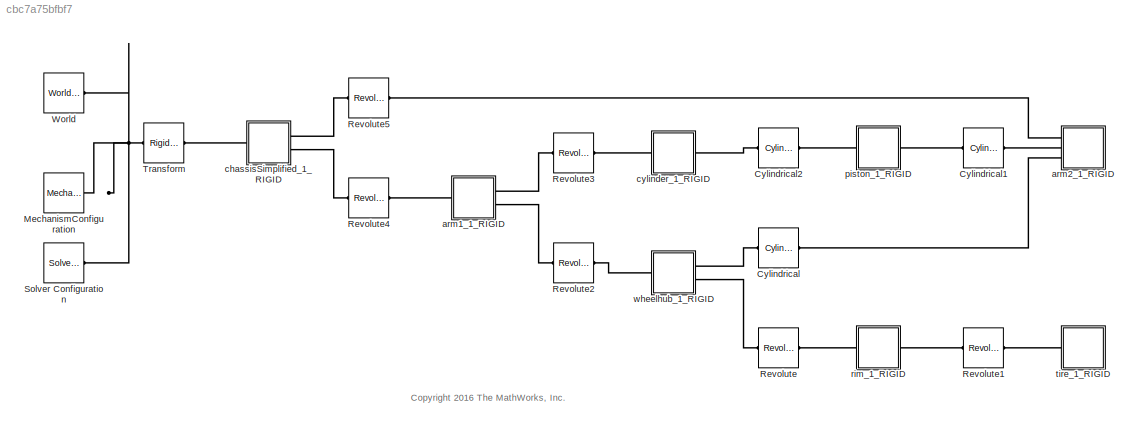
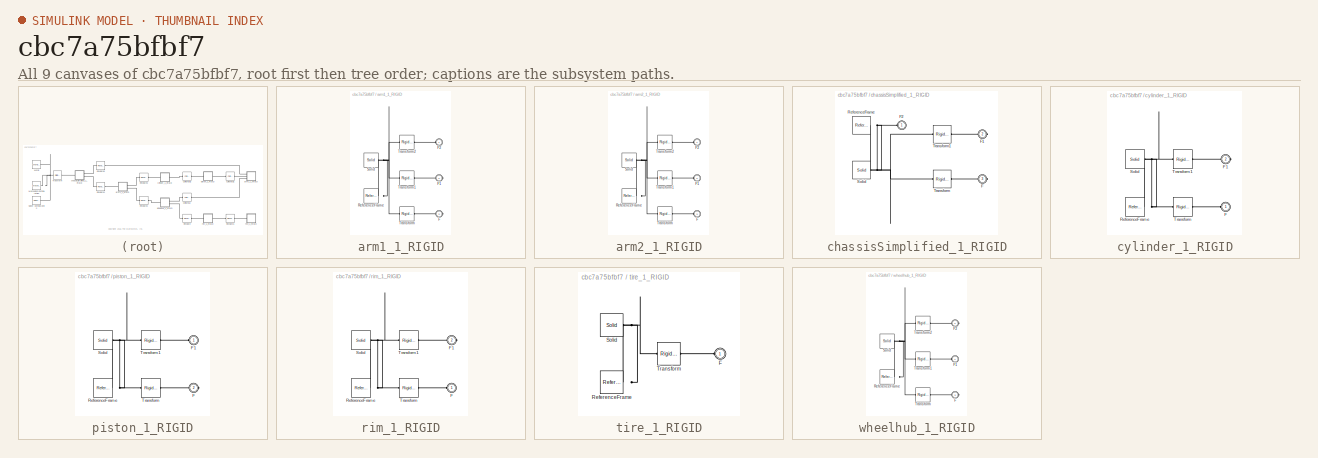
[diagram: thumbnail index - all 9 canvases of the model, root first then tree order]
MODEL slx_cbc7a75bfbf7
KIND model
CONFIG AbsTol = auto
CONFIG FixedStep = auto
CONFIG MaxStep = auto
CONFIG MinStep = auto
CONFIG PreLoadFcn = addpath('.\ExportedFiles')\nsusp_CAD_params
CONFIG RelTol = 1e-3
CONFIG SampleTimeConstraint = Unconstrained
CONFIG Solver = VariableStepAuto
CONFIG SolverMode = Auto
CONFIG SolverName = VariableStepAuto
CONFIG StartTime = 0.0
CONFIG StopTime = 10.0
BLOCK [Reference] Cylindrical  REF=sm_lib/Joints/Cylindrical
Joint
  Ports = [0, 0, 0, 0, 0, 1, 1]
  SourceBlock = sm_lib/Joints/Cylindrical\nJoint
  SourceType = Cylindrical\nJoint
BLOCK [Reference] Cylindrical1  REF=sm_lib/Joints/Cylindrical
Joint
  Ports = [0, 0, 0, 0, 0, 1, 1]
  SourceBlock = sm_lib/Joints/Cylindrical\nJoint
  SourceType = Cylindrical\nJoint
BLOCK [Reference] Cylindrical2  REF=sm_lib/Joints/Cylindrical
Joint
  Ports = [0, 0, 0, 0, 0, 1, 1]
  SourceBlock = sm_lib/Joints/Cylindrical\nJoint
  SourceType = Cylindrical\nJoint
BLOCK [Reference] MechanismConfiguration  REF=sm_lib/Utilities/Mechanism
Configuration
  Ports = [0, 0, 0, 0, 0, 0, 1]
  SourceBlock = sm_lib/Utilities/Mechanism\nConfiguration
  SourceType = Mechanism\nConfiguration
BLOCK [Reference] Revolute  REF=sm_lib/Joints/Revolute Joint
  Ports = [0, 0, 0, 0, 0, 1, 1]
  SourceBlock = sm_lib/Joints/Revolute Joint
  SourceType = Revolute Joint
BLOCK [Reference] Revolute1  REF=sm_lib/Joints/Revolute Joint
  Ports = [0, 0, 0, 0, 0, 1, 1]
  SourceBlock = sm_lib/Joints/Revolute Joint
  SourceType = Revolute Joint
BLOCK [Reference] Revolute2  REF=sm_lib/Joints/Revolute Joint
  Ports = [0, 0, 0, 0, 0, 1, 1]
  SourceBlock = sm_lib/Joints/Revolute Joint
  SourceType = Revolute Joint
BLOCK [Reference] Revolute3  REF=sm_lib/Joints/Revolute Joint
  Ports = [0, 0, 0, 0, 0, 1, 1]
  SourceBlock = sm_lib/Joints/Revolute Joint
  SourceType = Revolute Joint
BLOCK [Reference] Revolute4  REF=sm_lib/Joints/Revolute Joint
  Ports = [0, 0, 0, 0, 0, 1, 1]
  SourceBlock = sm_lib/Joints/Revolute Joint
  SourceType = Revolute Joint
BLOCK [Reference] Revolute5  REF=sm_lib/Joints/Revolute Joint
  Ports = [0, 0, 0, 0, 0, 1, 1]
  SourceBlock = sm_lib/Joints/Revolute Joint
  SourceType = Revolute Joint
BLOCK [Reference] Solver Configuration  REF=nesl_utility/Solver
Configuration
  Ports = [0, 0, 0, 0, 0, 0, 1]
  SourceBlock = nesl_utility/Solver\nConfiguration
  SourceType = Solver\nConfiguration
BLOCK [Reference] Transform  REF=sm_lib/Frames and
Transforms/Rigid
Transform
  Ports = [0, 0, 0, 0, 0, 1, 1]
  SourceBlock = sm_lib/Frames and\nTransforms/Rigid\nTransform
  SourceType = Rigid\nTransform
BLOCK [Reference] World  REF=sm_lib/Frames and
Transforms/World Frame
  Ports = [0, 0, 0, 0, 0, 0, 1]
  SourceBlock = sm_lib/Frames and\nTransforms/World Frame
  SourceType = World Frame
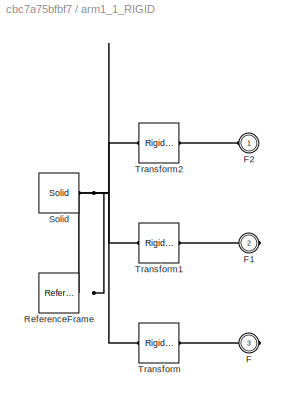
BLOCK [SubSystem] arm1_1_RIGID
  Ports = [0, 0, 0, 0, 0, 1, 2]
  RequestExecContextInheritance = off
  Variant = off
BLOCK [PMIOPort] arm1_1_RIGID/F
  Port = 3
  Side = Right
BLOCK [PMIOPort] arm1_1_RIGID/F1
  Port = 2
  Side = Right
BLOCK [PMIOPort] arm1_1_RIGID/F2
  Port = 1
  Side = Left
BLOCK [Reference] arm1_1_RIGID/ReferenceFrame  REF=sm_lib/Frames and
Transforms/Reference
Frame
  Ports = [0, 0, 0, 0, 0, 0, 1]
  SourceBlock = sm_lib/Frames and\nTransforms/Reference\nFrame
  SourceType = Reference\nFrame
BLOCK [Reference] arm1_1_RIGID/Solid  REF=sm_lib/Body Elements/Solid
  Ports = [0, 0, 0, 0, 0, 0, 1]
  SourceBlock = sm_lib/Body Elements/Solid
  SourceType = Solid
BLOCK [Reference] arm1_1_RIGID/Transform  REF=sm_lib/Frames and
Transforms/Rigid
Transform
  Ports = [0, 0, 0, 0, 0, 1, 1]
  SourceBlock = sm_lib/Frames and\nTransforms/Rigid\nTransform
  SourceType = Rigid\nTransform
BLOCK [Reference] arm1_1_RIGID/Transform1  REF=sm_lib/Frames and
Transforms/Rigid
Transform
  Ports = [0, 0, 0, 0, 0, 1, 1]
  SourceBlock = sm_lib/Frames and\nTransforms/Rigid\nTransform
  SourceType = Rigid\nTransform
BLOCK [Reference] arm1_1_RIGID/Transform2  REF=sm_lib/Frames and
Transforms/Rigid
Transform
  Ports = [0, 0, 0, 0, 0, 1, 1]
  SourceBlock = sm_lib/Frames and\nTransforms/Rigid\nTransform
  SourceType = Rigid\nTransform
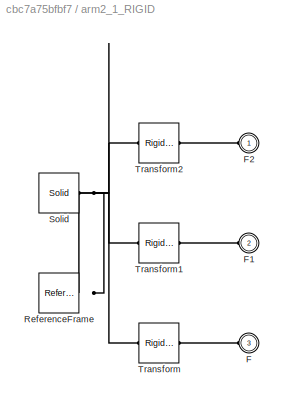
BLOCK [SubSystem] arm2_1_RIGID
  Ports = [0, 0, 0, 0, 0, 3]
  RequestExecContextInheritance = off
  Variant = off
BLOCK [PMIOPort] arm2_1_RIGID/F
  Port = 3
  Side = Left
BLOCK [PMIOPort] arm2_1_RIGID/F1
  Port = 2
  Side = Left
BLOCK [PMIOPort] arm2_1_RIGID/F2
  Port = 1
  Side = Left
BLOCK [Reference] arm2_1_RIGID/ReferenceFrame  REF=sm_lib/Frames and
Transforms/Reference
Frame
  Ports = [0, 0, 0, 0, 0, 0, 1]
  SourceBlock = sm_lib/Frames and\nTransforms/Reference\nFrame
  SourceType = Reference\nFrame
BLOCK [Reference] arm2_1_RIGID/Solid  REF=sm_lib/Body Elements/Solid
  Ports = [0, 0, 0, 0, 0, 0, 1]
  SourceBlock = sm_lib/Body Elements/Solid
  SourceType = Solid
BLOCK [Reference] arm2_1_RIGID/Transform  REF=sm_lib/Frames and
Transforms/Rigid
Transform
  Ports = [0, 0, 0, 0, 0, 1, 1]
  SourceBlock = sm_lib/Frames and\nTransforms/Rigid\nTransform
  SourceType = Rigid\nTransform
BLOCK [Reference] arm2_1_RIGID/Transform1  REF=sm_lib/Frames and
Transforms/Rigid
Transform
  Ports = [0, 0, 0, 0, 0, 1, 1]
  SourceBlock = sm_lib/Frames and\nTransforms/Rigid\nTransform
  SourceType = Rigid\nTransform
BLOCK [Reference] arm2_1_RIGID/Transform2  REF=sm_lib/Frames and
Transforms/Rigid
Transform
  Ports = [0, 0, 0, 0, 0, 1, 1]
  SourceBlock = sm_lib/Frames and\nTransforms/Rigid\nTransform
  SourceType = Rigid\nTransform
BLOCK [SubSystem] chassisSimplified_1_RIGID
  Ports = [0, 0, 0, 0, 0, 1, 2]
  RequestExecContextInheritance = off
  Variant = off
BLOCK [PMIOPort] chassisSimplified_1_RIGID/F
  Port = 3
  Side = Right
BLOCK [PMIOPort] chassisSimplified_1_RIGID/F1
  Port = 2
  Side = Right
BLOCK [PMIOPort] chassisSimplified_1_RIGID/F2
  Port = 1
  Side = Left
BLOCK [Reference] chassisSimplified_1_RIGID/ReferenceFrame  REF=sm_lib/Frames and
Transforms/Reference
Frame
  Ports = [0, 0, 0, 0, 0, 0, 1]
  SourceBlock = sm_lib/Frames and\nTransforms/Reference\nFrame
  SourceType = Reference\nFrame
BLOCK [Reference] chassisSimplified_1_RIGID/Solid  REF=sm_lib/Body Elements/Solid
  Ports = [0, 0, 0, 0, 0, 0, 1]
  SourceBlock = sm_lib/Body Elements/Solid
  SourceType = Solid
BLOCK [Reference] chassisSimplified_1_RIGID/Transform  REF=sm_lib/Frames and
Transforms/Rigid
Transform
  Ports = [0, 0, 0, 0, 0, 1, 1]
  SourceBlock = sm_lib/Frames and\nTransforms/Rigid\nTransform
  SourceType = Rigid\nTransform
BLOCK [Reference] chassisSimplified_1_RIGID/Transform1  REF=sm_lib/Frames and
Transforms/Rigid
Transform
  Ports = [0, 0, 0, 0, 0, 1, 1]
  SourceBlock = sm_lib/Frames and\nTransforms/Rigid\nTransform
  SourceType = Rigid\nTransform
BLOCK [SubSystem] cylinder_1_RIGID
  Ports = [0, 0, 0, 0, 0, 1, 1]
  RequestExecContextInheritance = off
  Variant = off
BLOCK [PMIOPort] cylinder_1_RIGID/F
  Port = 1
  Side = Left
BLOCK [PMIOPort] cylinder_1_RIGID/F1
  Port = 2
  Side = Right
BLOCK [Reference] cylinder_1_RIGID/ReferenceFrame  REF=sm_lib/Frames and
Transforms/Reference
Frame
  Ports = [0, 0, 0, 0, 0, 0, 1]
  SourceBlock = sm_lib/Frames and\nTransforms/Reference\nFrame
  SourceType = Reference\nFrame
BLOCK [Reference] cylinder_1_RIGID/Solid  REF=sm_lib/Body Elements/Solid
  Ports = [0, 0, 0, 0, 0, 0, 1]
  SourceBlock = sm_lib/Body Elements/Solid
  SourceType = Solid
BLOCK [Reference] cylinder_1_RIGID/Transform  REF=sm_lib/Frames and
Transforms/Rigid
Transform
  Ports = [0, 0, 0, 0, 0, 1, 1]
  SourceBlock = sm_lib/Frames and\nTransforms/Rigid\nTransform
  SourceType = Rigid\nTransform
BLOCK [Reference] cylinder_1_RIGID/Transform1  REF=sm_lib/Frames and
Transforms/Rigid
Transform
  Ports = [0, 0, 0, 0, 0, 1, 1]
  SourceBlock = sm_lib/Frames and\nTransforms/Rigid\nTransform
  SourceType = Rigid\nTransform
BLOCK [SubSystem] piston_1_RIGID
  Ports = [0, 0, 0, 0, 0, 1, 1]
  RequestExecContextInheritance = off
  Variant = off
BLOCK [PMIOPort] piston_1_RIGID/F
  Port = 2
  Side = Right
BLOCK [PMIOPort] piston_1_RIGID/F1
  Port = 1
  Side = Left
BLOCK [Reference] piston_1_RIGID/ReferenceFrame  REF=sm_lib/Frames and
Transforms/Reference
Frame
  Ports = [0, 0, 0, 0, 0, 0, 1]
  SourceBlock = sm_lib/Frames and\nTransforms/Reference\nFrame
  SourceType = Reference\nFrame
BLOCK [Reference] piston_1_RIGID/Solid  REF=sm_lib/Body Elements/Solid
  Ports = [0, 0, 0, 0, 0, 0, 1]
  SourceBlock = sm_lib/Body Elements/Solid
  SourceType = Solid
BLOCK [Reference] piston_1_RIGID/Transform  REF=sm_lib/Frames and
Transforms/Rigid
Transform
  Ports = [0, 0, 0, 0, 0, 1, 1]
  SourceBlock = sm_lib/Frames and\nTransforms/Rigid\nTransform
  SourceType = Rigid\nTransform
BLOCK [Reference] piston_1_RIGID/Transform1  REF=sm_lib/Frames and
Transforms/Rigid
Transform
  Ports = [0, 0, 0, 0, 0, 1, 1]
  SourceBlock = sm_lib/Frames and\nTransforms/Rigid\nTransform
  SourceType = Rigid\nTransform
BLOCK [SubSystem] rim_1_RIGID
  Ports = [0, 0, 0, 0, 0, 1, 1]
  RequestExecContextInheritance = off
  Variant = off
BLOCK [PMIOPort] rim_1_RIGID/F
  Port = 1
  Side = Left
BLOCK [PMIOPort] rim_1_RIGID/F1
  Port = 2
  Side = Right
BLOCK [Reference] rim_1_RIGID/ReferenceFrame  REF=sm_lib/Frames and
Transforms/Reference
Frame
  Ports = [0, 0, 0, 0, 0, 0, 1]
  SourceBlock = sm_lib/Frames and\nTransforms/Reference\nFrame
  SourceType = Reference\nFrame
BLOCK [Reference] rim_1_RIGID/Solid  REF=sm_lib/Body Elements/Solid
  Ports = [0, 0, 0, 0, 0, 0, 1]
  SourceBlock = sm_lib/Body Elements/Solid
  SourceType = Solid
BLOCK [Reference] rim_1_RIGID/Transform  REF=sm_lib/Frames and
Transforms/Rigid
Transform
  Ports = [0, 0, 0, 0, 0, 1, 1]
  SourceBlock = sm_lib/Frames and\nTransforms/Rigid\nTransform
  SourceType = Rigid\nTransform
BLOCK [Reference] rim_1_RIGID/Transform1  REF=sm_lib/Frames and
Transforms/Rigid
Transform
  Ports = [0, 0, 0, 0, 0, 1, 1]
  SourceBlock = sm_lib/Frames and\nTransforms/Rigid\nTransform
  SourceType = Rigid\nTransform
BLOCK [SubSystem] tire_1_RIGID
  Ports = [0, 0, 0, 0, 0, 1]
  RequestExecContextInheritance = off
  Variant = off
BLOCK [PMIOPort] tire_1_RIGID/F
  Port = 1
  Side = Left
BLOCK [Reference] tire_1_RIGID/ReferenceFrame  REF=sm_lib/Frames and
Transforms/Reference
Frame
  Ports = [0, 0, 0, 0, 0, 0, 1]
  SourceBlock = sm_lib/Frames and\nTransforms/Reference\nFrame
  SourceType = Reference\nFrame
BLOCK [Reference] tire_1_RIGID/Solid  REF=sm_lib/Body Elements/Solid
  Ports = [0, 0, 0, 0, 0, 0, 1]
  SourceBlock = sm_lib/Body Elements/Solid
  SourceType = Solid
BLOCK [Reference] tire_1_RIGID/Transform  REF=sm_lib/Frames and
Transforms/Rigid
Transform
  Ports = [0, 0, 0, 0, 0, 1, 1]
  SourceBlock = sm_lib/Frames and\nTransforms/Rigid\nTransform
  SourceType = Rigid\nTransform
BLOCK [SubSystem] wheelhub_1_RIGID
  Ports = [0, 0, 0, 0, 0, 1, 2]
  RequestExecContextInheritance = off
  Variant = off
BLOCK [PMIOPort] wheelhub_1_RIGID/F
  Port = 3
  Side = Right
BLOCK [PMIOPort] wheelhub_1_RIGID/F1
  Port = 1
  Side = Left
BLOCK [PMIOPort] wheelhub_1_RIGID/F2
  Port = 2
  Side = Right
BLOCK [Reference] wheelhub_1_RIGID/ReferenceFrame  REF=sm_lib/Frames and
Transforms/Reference
Frame
  Ports = [0, 0, 0, 0, 0, 0, 1]
  SourceBlock = sm_lib/Frames and\nTransforms/Reference\nFrame
  SourceType = Reference\nFrame
BLOCK [Reference] wheelhub_1_RIGID/Solid  REF=sm_lib/Body Elements/Solid
  Ports = [0, 0, 0, 0, 0, 0, 1]
  SourceBlock = sm_lib/Body Elements/Solid
  SourceType = Solid
BLOCK [Reference] wheelhub_1_RIGID/Transform  REF=sm_lib/Frames and
Transforms/Rigid
Transform
  Ports = [0, 0, 0, 0, 0, 1, 1]
  SourceBlock = sm_lib/Frames and\nTransforms/Rigid\nTransform
  SourceType = Rigid\nTransform
BLOCK [Reference] wheelhub_1_RIGID/Transform1  REF=sm_lib/Frames and
Transforms/Rigid
Transform
  Ports = [0, 0, 0, 0, 0, 1, 1]
  SourceBlock = sm_lib/Frames and\nTransforms/Rigid\nTransform
  SourceType = Rigid\nTransform
BLOCK [Reference] wheelhub_1_RIGID/Transform2  REF=sm_lib/Frames and
Transforms/Rigid
Transform
  Ports = [0, 0, 0, 0, 0, 1, 1]
  SourceBlock = sm_lib/Frames and\nTransforms/Rigid\nTransform
  SourceType = Rigid\nTransform
ANNOTATION (root): <copyright redacted>
PLINE Cylindrical1:LConn1 -- piston_1_RIGID:RConn1
PLINE Cylindrical1:RConn1 -- arm2_1_RIGID:LConn2
PLINE Cylindrical2:LConn1 -- cylinder_1_RIGID:RConn1
PLINE Cylindrical2:RConn1 -- piston_1_RIGID:LConn1
PLINE Cylindrical:LConn1 -- wheelhub_1_RIGID:RConn1
PLINE Cylindrical:RConn1 -- arm2_1_RIGID:LConn3
PNET net1: MechanismConfiguration:RConn1 -- Solver Configuration:RConn1 -- Transform:LConn1 -- World:RConn1
PLINE Revolute1:LConn1 -- rim_1_RIGID:RConn1
PLINE Revolute1:RConn1 -- tire_1_RIGID:LConn1
PLINE Revolute2:LConn1 -- arm1_1_RIGID:RConn2
PLINE Revolute2:RConn1 -- wheelhub_1_RIGID:LConn1
PLINE Revolute3:LConn1 -- arm1_1_RIGID:RConn1
PLINE Revolute3:RConn1 -- cylinder_1_RIGID:LConn1
PLINE Revolute4:LConn1 -- chassisSimplified_1_RIGID:RConn2
PLINE Revolute4:RConn1 -- arm1_1_RIGID:LConn1
PLINE Revolute5:LConn1 -- chassisSimplified_1_RIGID:RConn1
PLINE Revolute5:RConn1 -- arm2_1_RIGID:LConn1
PLINE Revolute:LConn1 -- wheelhub_1_RIGID:RConn2
PLINE Revolute:RConn1 -- rim_1_RIGID:LConn1
PLINE Transform:RConn1 -- chassisSimplified_1_RIGID:LConn1
PLINE arm1_1_RIGID/F1:RConn1 -- arm1_1_RIGID/Transform1:RConn1
PLINE arm1_1_RIGID/F2:RConn1 -- arm1_1_RIGID/Transform2:RConn1
PLINE arm1_1_RIGID/F:RConn1 -- arm1_1_RIGID/Transform:RConn1
PNET net2: arm1_1_RIGID/ReferenceFrame:RConn1 -- arm1_1_RIGID/Solid:RConn1 -- arm1_1_RIGID/Transform1:LConn1 -- arm1_1_RIGID/Transform2:LConn1 -- arm1_1_RIGID/Transform:LConn1
PLINE arm2_1_RIGID/F1:RConn1 -- arm2_1_RIGID/Transform1:RConn1
PLINE arm2_1_RIGID/F2:RConn1 -- arm2_1_RIGID/Transform2:RConn1
PLINE arm2_1_RIGID/F:RConn1 -- arm2_1_RIGID/Transform:RConn1
PNET net3: arm2_1_RIGID/ReferenceFrame:RConn1 -- arm2_1_RIGID/Solid:RConn1 -- arm2_1_RIGID/Transform1:LConn1 -- arm2_1_RIGID/Transform2:LConn1 -- arm2_1_RIGID/Transform:LConn1
PLINE chassisSimplified_1_RIGID/F1:RConn1 -- chassisSimplified_1_RIGID/Transform1:RConn1
PNET net4: chassisSimplified_1_RIGID/F2:RConn1 -- chassisSimplified_1_RIGID/ReferenceFrame:RConn1 -- chassisSimplified_1_RIGID/Solid:RConn1 -- chassisSimplified_1_RIGID/Transform1:LConn1 -- chassisSimplified_1_RIGID/Transform:LConn1
PLINE chassisSimplified_1_RIGID/F:RConn1 -- chassisSimplified_1_RIGID/Transform:RConn1
PLINE cylinder_1_RIGID/F1:RConn1 -- cylinder_1_RIGID/Transform1:RConn1
PLINE cylinder_1_RIGID/F:RConn1 -- cylinder_1_RIGID/Transform:RConn1
PNET net5: cylinder_1_RIGID/ReferenceFrame:RConn1 -- cylinder_1_RIGID/Solid:RConn1 -- cylinder_1_RIGID/Transform1:LConn1 -- cylinder_1_RIGID/Transform:LConn1
PLINE piston_1_RIGID/F1:RConn1 -- piston_1_RIGID/Transform1:RConn1
PLINE piston_1_RIGID/F:RConn1 -- piston_1_RIGID/Transform:RConn1
PNET net6: piston_1_RIGID/ReferenceFrame:RConn1 -- piston_1_RIGID/Solid:RConn1 -- piston_1_RIGID/Transform1:LConn1 -- piston_1_RIGID/Transform:LConn1
PLINE rim_1_RIGID/F1:RConn1 -- rim_1_RIGID/Transform1:RConn1
PLINE rim_1_RIGID/F:RConn1 -- rim_1_RIGID/Transform:RConn1
PNET net7: rim_1_RIGID/ReferenceFrame:RConn1 -- rim_1_RIGID/Solid:RConn1 -- rim_1_RIGID/Transform1:LConn1 -- rim_1_RIGID/Transform:LConn1
PLINE tire_1_RIGID/F:RConn1 -- tire_1_RIGID/Transform:RConn1
PNET net8: tire_1_RIGID/ReferenceFrame:RConn1 -- tire_1_RIGID/Solid:RConn1 -- tire_1_RIGID/Transform:LConn1
PLINE wheelhub_1_RIGID/F1:RConn1 -- wheelhub_1_RIGID/Transform1:RConn1
PLINE wheelhub_1_RIGID/F2:RConn1 -- wheelhub_1_RIGID/Transform2:RConn1
PLINE wheelhub_1_RIGID/F:RConn1 -- wheelhub_1_RIGID/Transform:RConn1
PNET net9: wheelhub_1_RIGID/ReferenceFrame:RConn1 -- wheelhub_1_RIGID/Solid:RConn1 -- wheelhub_1_RIGID/Transform1:LConn1 -- wheelhub_1_RIGID/Transform2:LConn1 -- wheelhub_1_RIGID/Transform:LConn1
note: PNET lines group multi-terminal physical nets as a canonical sorted terminal list (undirected conserving connections); 2-terminal nets keep the pairwise PLINE form
